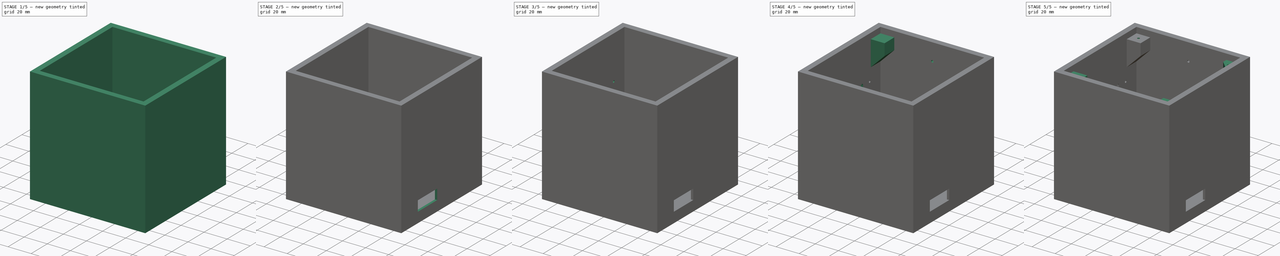
[diagram: build sequence overview — one tinted view per stage of 5, left to right]
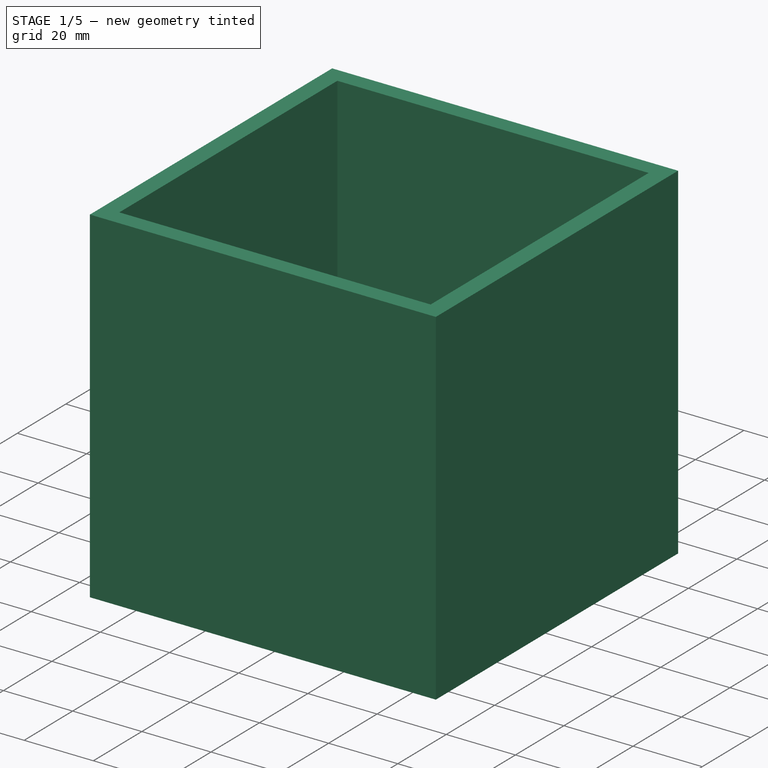
[diagram: stage 1 of 5 — iso view after this stage's code; geometry added in this stage tinted green]
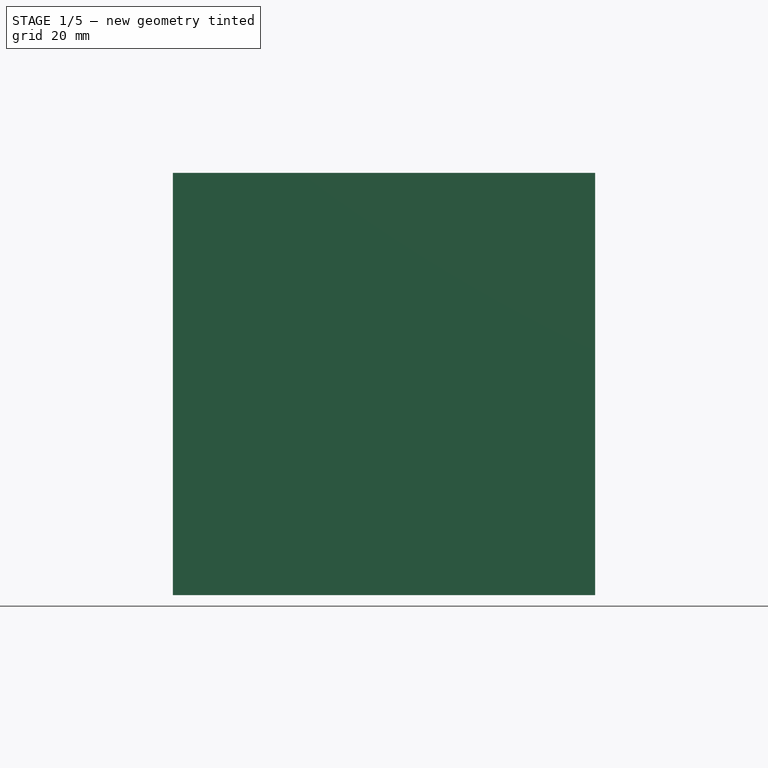
[diagram: stage 1 of 5 — front view after this stage's code; geometry added in this stage tinted green]
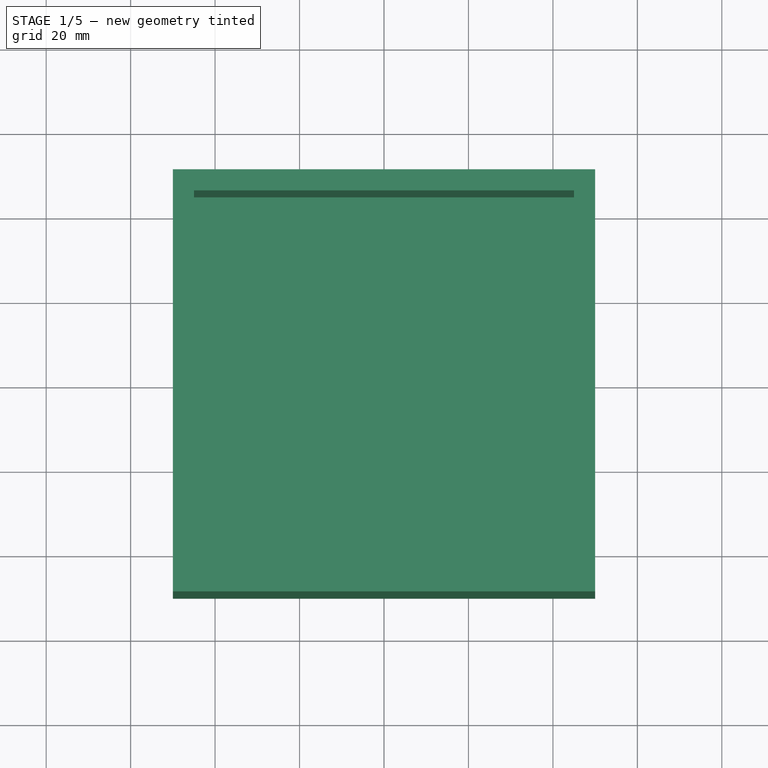
[diagram: stage 1 of 5 — top view after this stage's code; geometry added in this stage tinted green]
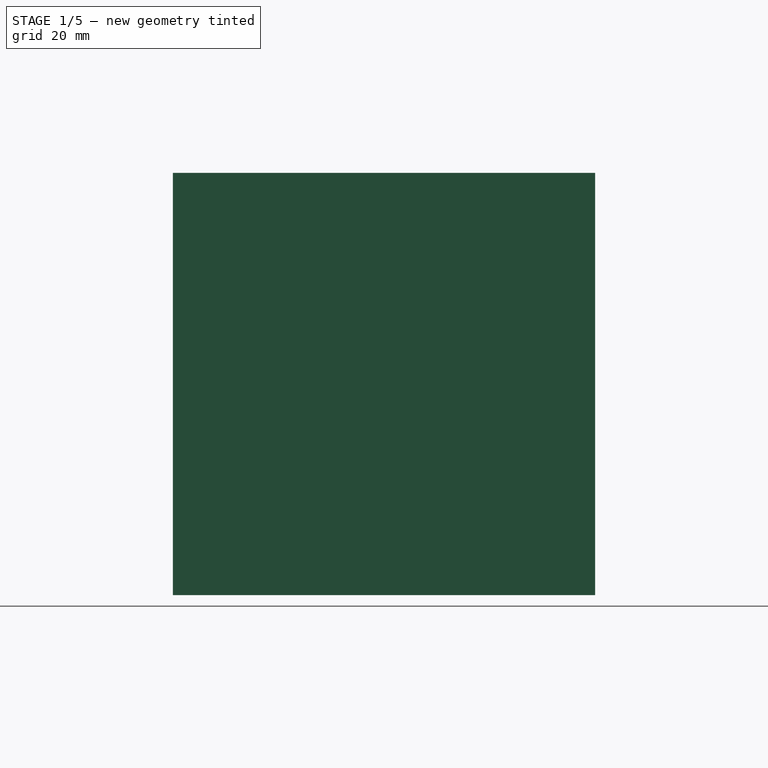
[diagram: stage 1 of 5 — right view after this stage's code; geometry added in this stage tinted green]
FCSTD DOCUMENT  (FreeCAD 0.21R33675 (Git))
Label: boxv1
License: All rights reserved
LicenseURL: http://en.wikipedia.org/wiki/All_rights_reserved
objects: Sketcher::SketchObject×14, PartDesign::Pocket×11, PartDesign::Pad×3, PartDesign::LinearPattern×3, PartDesign::Mirrored×2, PartDesign::MultiTransform×2, PartDesign::Body×1
note: 50 computed .brp shape members not serialized (recipe doc carries the construction recipe); baked Part::Feature solids carry a one-line shape summary decoded from their .brp

FEATURE [Sketcher::SketchObject] Sketch
  FullyConstrained = true
  MapMode = 5
  Support = -> [XY_Plane]
  sketch-geometry (6):
    g0: LineSegment StartX=-50 StartY=50 StartZ=0 EndX=50 EndY=50 EndZ=0
    g1: LineSegment StartX=50 StartY=50 StartZ=0 EndX=50 EndY=-50 EndZ=0
    g2: LineSegment StartX=50 StartY=-50 StartZ=0 EndX=-50 EndY=-50 EndZ=0
    g3: LineSegment StartX=-50 StartY=-50 StartZ=0 EndX=-50 EndY=50 EndZ=0
    g4: LineSegment StartX=-50 StartY=50 StartZ=0 EndX=50 EndY=-50 EndZ=0
    g5: LineSegment StartX=-50 StartY=-50 StartZ=0 EndX=50 EndY=50 EndZ=0
  constraints (16):
    c: Coincident(g0,g1)
    c: Coincident(g1,g2)
    c: Coincident(g2,g3)
    c: Coincident(g3,g0)
    c: Horizontal(g0)
    c: Horizontal(g2)
    c: Vertical(g1)
    c: Vertical(g3)
    c: Distance(g0) = 100
    c: Distance(g3) = 100
    c: Coincident(g4,g0)
    c: Coincident(g4,g1)
    c: Coincident(g5,g2)
    c: Coincident(g5,g0)
    c: PointOnObject(g-1,g4)
    c: PointOnObject(g-1,g5)
FEATURE [PartDesign::Pad] Pad
  Direction = (0,0,1)
  Length = 100
  Length2 = 10
  Profile = -> Sketch
  ReferenceAxis = -> Sketch [N_Axis]
  Type = 0
FEATURE [Sketcher::SketchObject] Sketch001
  FullyConstrained = true
  MapMode = 5
  Placement = pos=(0,0,100) rot=(0,0,1;0rad)
  Support = -> [Pad]
  sketch-geometry (6):
    g0: LineSegment StartX=-45 StartY=45 StartZ=0 EndX=45 EndY=45 EndZ=0
    g1: LineSegment StartX=45 StartY=45 StartZ=0 EndX=45 EndY=-45 EndZ=0
    g2: LineSegment StartX=45 StartY=-45 StartZ=0 EndX=-45 EndY=-45 EndZ=0
    g3: LineSegment StartX=-45 StartY=-45 StartZ=0 EndX=-45 EndY=45 EndZ=0
    g4: LineSegment StartX=-45 StartY=45 StartZ=0 EndX=45 EndY=-45 EndZ=0
    g5: LineSegment StartX=-45 StartY=-45 StartZ=0 EndX=45 EndY=45 EndZ=0
  constraints (16):
    c: Coincident(g0,g1)
    c: Coincident(g1,g2)
    c: Coincident(g2,g3)
    c: Coincident(g3,g0)
    c: Horizontal(g0)
    c: Horizontal(g2)
    c: Vertical(g1)
    c: Vertical(g3)
    c: Distance(g0) = 90
    c: Distance(g1) = 90
    c: Coincident(g4,g0)
    c: Coincident(g4,g1)
    c: Coincident(g5,g2)
    c: Coincident(g5,g0)
    c: PointOnObject(g-1,g5)
    c: PointOnObject(g-1,g4)
FEATURE [PartDesign::Pocket] Pocket
  BaseFeature = -> Pad
  Direction = (0,0,-1)
  Length = 95
  Length2 = 5
  Profile = -> Sketch001
  ReferenceAxis = -> Sketch001 [N_Axis]
  Type = 0
FEATURE [Sketcher::SketchObject] Sketch002
  FullyConstrained = true
  MapMode = 5
  Placement = pos=(0,0,0) rot=(1,0,0;1.5708rad)
  Support = -> [XZ_Plane]
  sketch-geometry (4):
    g0: LineSegment StartX=28 StartY=5 StartZ=0 EndX=48 EndY=5 EndZ=0
    g1: LineSegment StartX=48 StartY=5 StartZ=0 EndX=48 EndY=23 EndZ=0
    g2: LineSegment StartX=48 StartY=23 StartZ=0 EndX=28 EndY=43 EndZ=0
    g3: LineSegment StartX=28 StartY=43 StartZ=0 EndX=28 EndY=5 EndZ=0
  constraints (12):
    c: Horizontal(g0)
    c: Coincident(g0,g1)
    c: Vertical(g1)
    c: Coincident(g1,g2)
    c: Coincident(g2,g3)
    c: Coincident(g3,g0)
    c: Vertical(g3)
    c: Angle(g3,g2) = 0.785398
    c: Distance(g1) = 18
    c: DistanceY(g-1,g0) = 5
    c: DistanceX(g-2,g0) = 48
    c: Distance(g0) = 20
FEATURE [PartDesign::Pocket] Pocket001
  BaseFeature = -> Pocket
  Direction = (0,1,-2e-16)
  Length = 45
  Length2 = 5
  Profile = -> Sketch002
  ReferenceAxis = -> Sketch002 [N_Axis]
  Type = 0
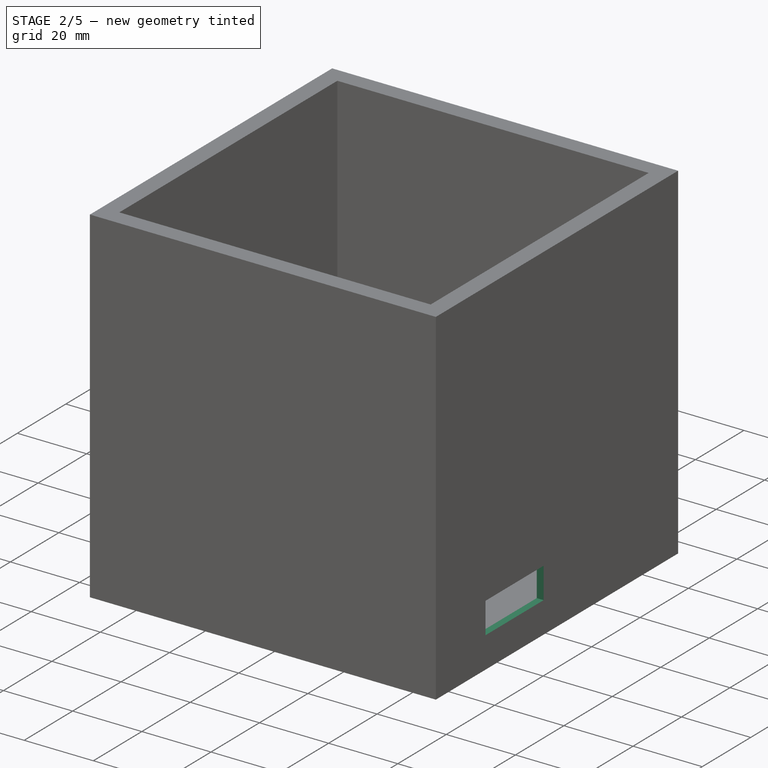
[diagram: stage 2 of 5 — iso view after this stage's code; geometry added in this stage tinted green]
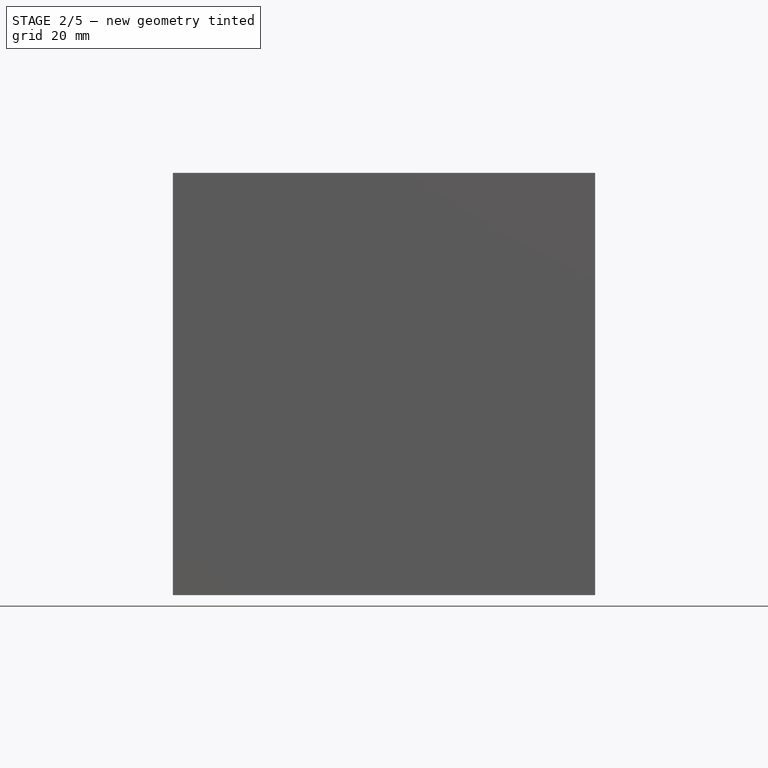
[diagram: stage 2 of 5 — front view after this stage's code; geometry added in this stage tinted green]
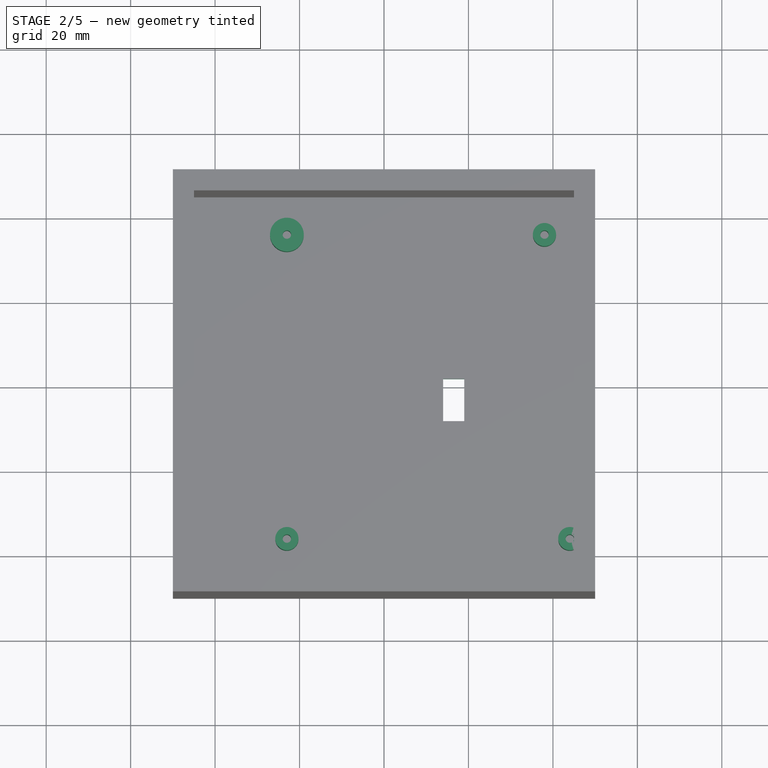
[diagram: stage 2 of 5 — top view after this stage's code; geometry added in this stage tinted green]
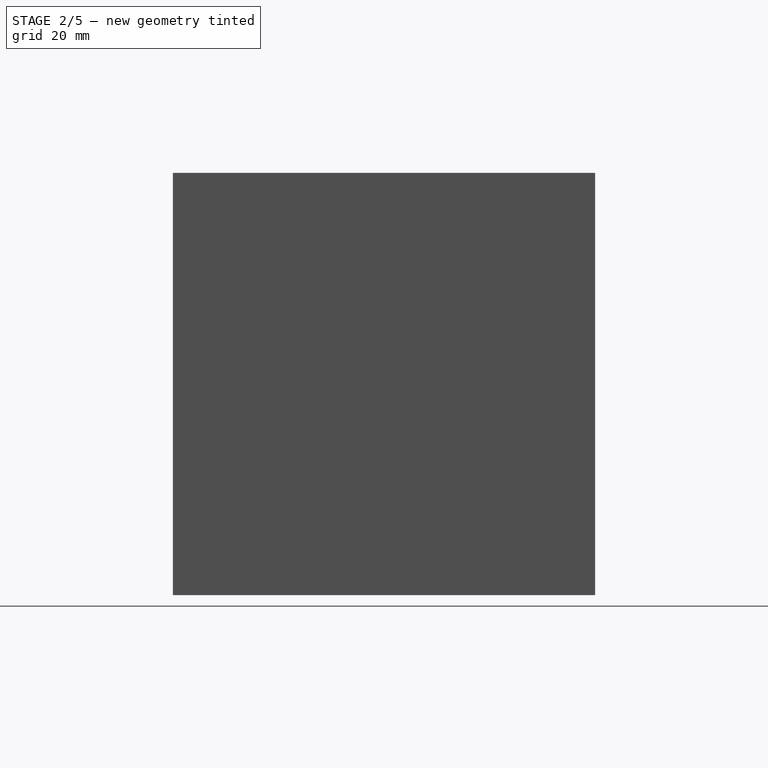
[diagram: stage 2 of 5 — right view after this stage's code; geometry added in this stage tinted green]
FEATURE [PartDesign::Mirrored] Mirrored
  BaseFeature = -> Pocket001
  MirrorPlane = -> XZ_Plane
  Originals = -> [Pocket001]
FEATURE [Sketcher::SketchObject] Sketch003
  FullyConstrained = true
  MapMode = 5
  Placement = pos=(0,0,5) rot=(0,0,1;0rad)
  Support = -> [Mirrored]
  sketch-geometry (8):
    g0: Circle CenterX=-23 CenterY=36 CenterZ=0 NormalX=0 NormalY=0 NormalZ=1 AngleXU=0 Radius=4
    g1: Circle CenterX=38 CenterY=36 CenterZ=0 NormalX=0 NormalY=0 NormalZ=1 AngleXU=0 Radius=2.75
    g2: Circle CenterX=44 CenterY=-36 CenterZ=0 NormalX=0 NormalY=0 NormalZ=1 AngleXU=0 Radius=2.75
    g3: Circle CenterX=-23 CenterY=-36 CenterZ=0 NormalX=0 NormalY=0 NormalZ=1 AngleXU=0 Radius=2.75
    g4: Circle CenterX=-23 CenterY=36 CenterZ=0 NormalX=0 NormalY=0 NormalZ=1 AngleXU=0 Radius=1
    g5: Circle CenterX=38 CenterY=36 CenterZ=0 NormalX=0 NormalY=0 NormalZ=1 AngleXU=0 Radius=1
    g6: Circle CenterX=44 CenterY=-36 CenterZ=0 NormalX=0 NormalY=0 NormalZ=1 AngleXU=0 Radius=1
    g7: Circle CenterX=-23 CenterY=-36 CenterZ=0 NormalX=0 NormalY=0 NormalZ=1 AngleXU=0 Radius=1
  constraints (20):
    c: Diameter(g0) = 8
    c: Diameter(g1) = 5.5
    c: Diameter(g2) = 5.5
    c: Diameter(g3) = 5.5
    c: DistanceY(g3,g0) = 72
    c: DistanceY(g2,g1) = 72
    c: DistanceX(g3,g2) = 67
    c: Horizontal(g3,g2)
    c: Vertical(g3,g0)
    c: DistanceX(g-1,g2) = 44
    c: DistanceY(g-1,g0) = 36
    c: Coincident(g4,g0)
    c: Coincident(g5,g1)
    c: Coincident(g6,g2)
    c: Coincident(g7,g3)
    c: Diameter(g7) = 2
    c: Diameter(g6) = 2
    c: Diameter(g5) = 2
    c: Diameter(g4) = 2
    c: DistanceX(g0,g1) = 61
FEATURE [PartDesign::Pad] Pad001
  BaseFeature = -> Mirrored
  Direction = (0,0,1)
  Length = 10
  Length2 = 10
  Profile = -> Sketch003
  ReferenceAxis = -> Sketch003 [N_Axis]
  Type = 0
FEATURE [Sketcher::SketchObject] Sketch004
  FullyConstrained = true
  MapMode = 5
  Placement = pos=(48,0,0) rot=(0.57735,-0.57735,-0.57735;2.0944rad)
  Support = -> [Pad001]
  sketch-geometry (7):
    g0: LineSegment StartX=5.5 StartY=18 StartZ=0 EndX=29.5 EndY=18 EndZ=0
    g1: LineSegment StartX=29.5 StartY=18 StartZ=0 EndX=29.5 EndY=9 EndZ=0
    g2: LineSegment StartX=29.5 StartY=9 StartZ=0 EndX=5.5 EndY=9 EndZ=0
    g3: LineSegment StartX=5.5 StartY=9 StartZ=0 EndX=5.5 EndY=18 EndZ=0
    g4: LineSegment StartX=5.5 StartY=18 StartZ=0 EndX=29.5 EndY=9 EndZ=0
    g5: LineSegment StartX=5.5 StartY=9 StartZ=0 EndX=29.5 EndY=18 EndZ=0
    g6: GeomPoint X=17.5 Y=13.5 Z=0
  constraints (18):
    c: Coincident(g0,g1)
    c: Coincident(g1,g2)
    c: Coincident(g2,g3)
    c: Coincident(g3,g0)
    c: Horizontal(g0)
    c: Horizontal(g2)
    c: Vertical(g1)
    c: Vertical(g3)
    c: DistanceY(g-1,g1) = 9
    c: Distance(g1) = 9
    c: Distance(g0) = 24
    c: Coincident(g4,g0)
    c: Coincident(g4,g1)
    c: Coincident(g5,g2)
    c: Coincident(g5,g0)
    c: PointOnObject(g6,g4)
    c: PointOnObject(g6,g5)
    c: DistanceX(g-2,g6) = 17.5
FEATURE [PartDesign::Pocket] Pocket002
  BaseFeature = -> Pad001
  Direction = (1,0,0)
  Length = 5
  Length2 = 5
  Profile = -> Sketch004
  ReferenceAxis = -> Sketch004 [N_Axis]
  Type = 0
FEATURE [Sketcher::SketchObject] Sketch005
  FullyConstrained = true
  MapMode = 5
  Placement = pos=(0,0,5) rot=(0,0,1;0rad)
  Support = -> [Pocket002]
  sketch-geometry (7):
    g0: LineSegment StartX=14 StartY=2 StartZ=0 EndX=19 EndY=2 EndZ=0
    g1: LineSegment StartX=19 StartY=2 StartZ=0 EndX=19 EndY=-8 EndZ=0
    g2: LineSegment StartX=19 StartY=-8 StartZ=0 EndX=14 EndY=-8 EndZ=0
    g3: LineSegment StartX=14 StartY=-8 StartZ=0 EndX=14 EndY=2 EndZ=0
    g4: LineSegment StartX=14 StartY=2 StartZ=0 EndX=19 EndY=-8 EndZ=0
    g5: LineSegment StartX=14 StartY=-8 StartZ=0 EndX=19 EndY=2 EndZ=0
    g6: GeomPoint X=16.5 Y=-3 Z=0
  constraints (18):
    c: Coincident(g0,g1)
    c: Coincident(g1,g2)
    c: Coincident(g2,g3)
    c: Coincident(g3,g0)
    c: Horizontal(g0)
    c: Horizontal(g2)
    c: Vertical(g1)
    c: Vertical(g3)
    c: Distance(g1) = 10
    c: Distance(g0) = 5
    c: Coincident(g4,g0)
    c: Coincident(g4,g1)
    c: Coincident(g5,g2)
    c: Coincident(g5,g0)
    c: PointOnObject(g6,g4)
    c: PointOnObject(g6,g5)
    c: DistanceY(g-1,g6) = -3
    c: DistanceX(g-1,g6) = 16.5
FEATURE [PartDesign::Pocket] Pocket003
  BaseFeature = -> Pocket002
  Direction = (0,0,-1)
  Length = 6
  Length2 = 5
  Profile = -> Sketch005
  ReferenceAxis = -> Sketch005 [N_Axis]
  Type = 0
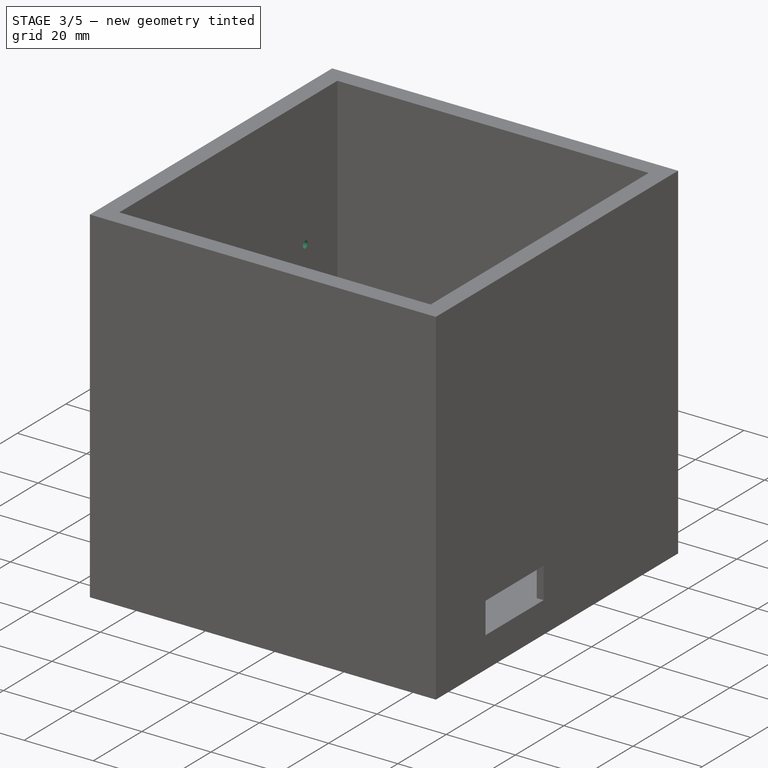
[diagram: stage 3 of 5 — iso view after this stage's code; geometry added in this stage tinted green]
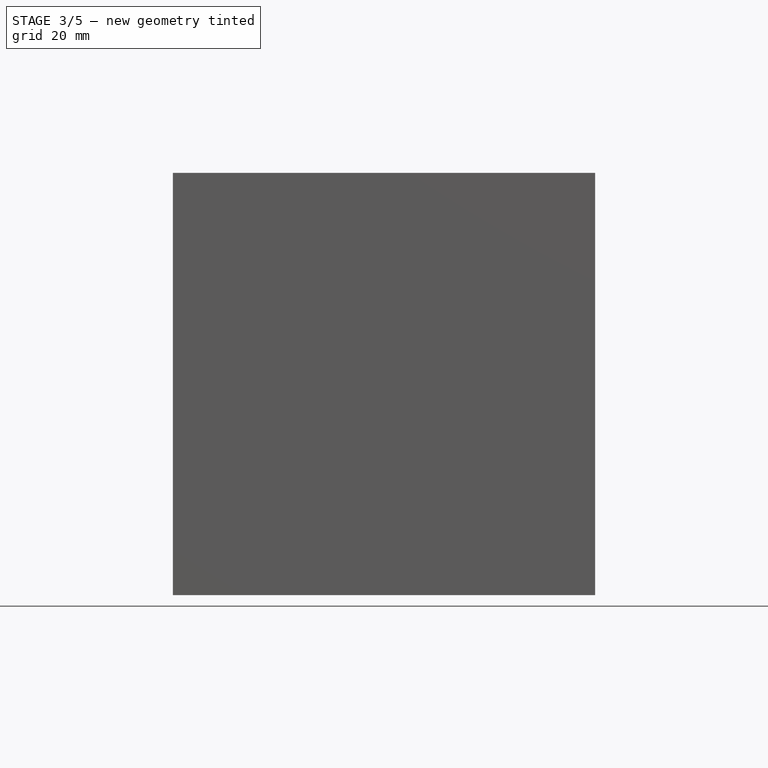
[diagram: stage 3 of 5 — front view after this stage's code; geometry added in this stage tinted green]
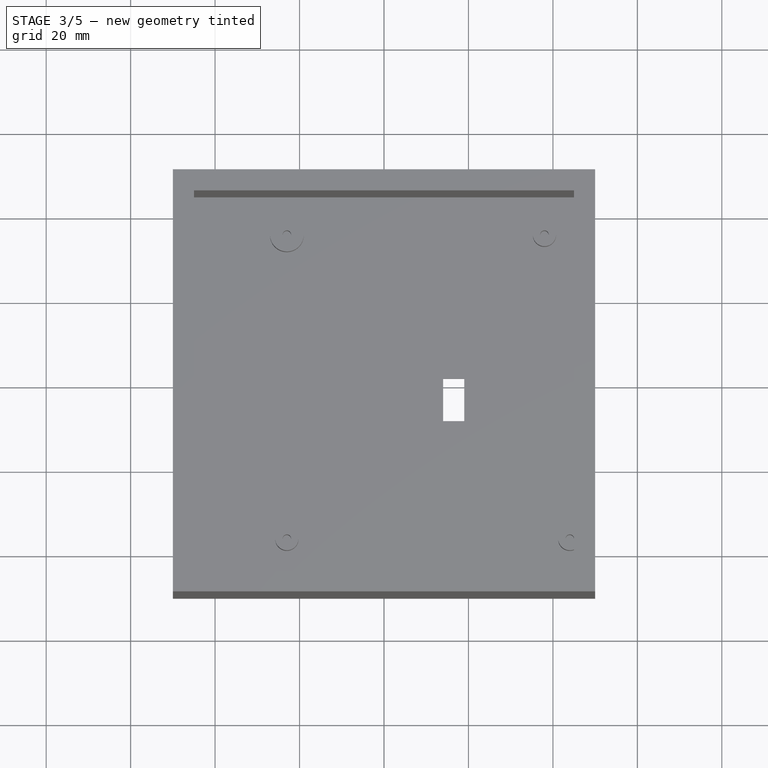
[diagram: stage 3 of 5 — top view after this stage's code; geometry added in this stage tinted green]
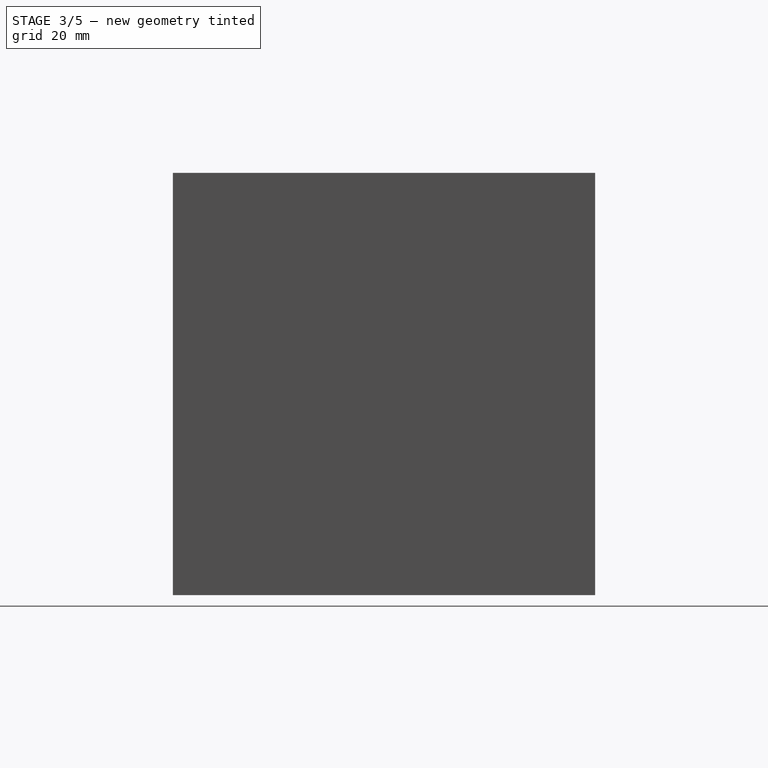
[diagram: stage 3 of 5 — right view after this stage's code; geometry added in this stage tinted green]
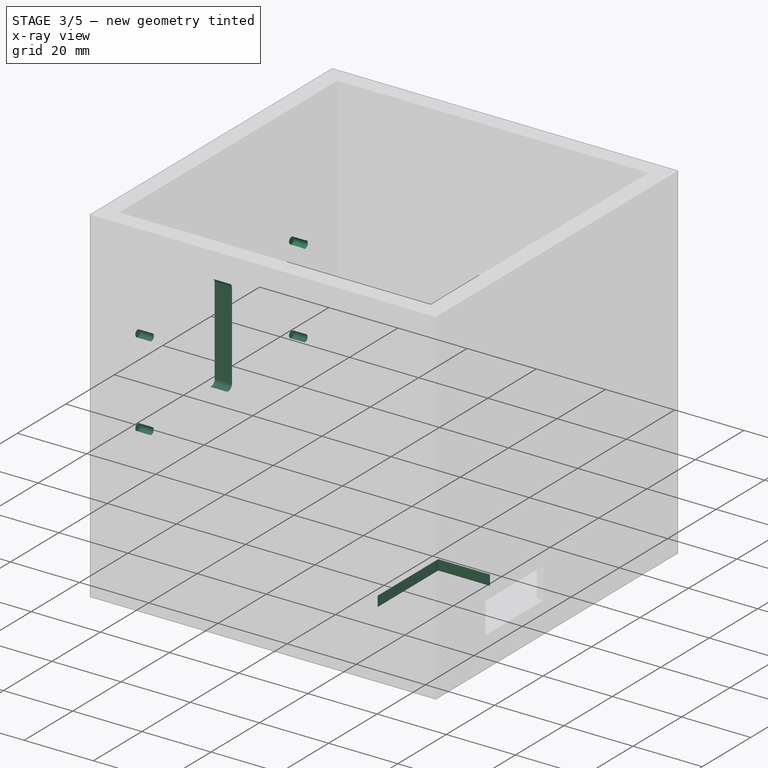
[diagram: stage 3 of 5 — x-ray composite at the iso view; earlier geometry ghosted, this stage's added geometry solid]
FEATURE [Sketcher::SketchObject] Sketch006
  FullyConstrained = true
  MapMode = 5
  Placement = pos=(0,0,0) rot=(1,0,0;3.14159rad)
  Support = -> [Pocket003]
  sketch-geometry (7):
    g0: LineSegment StartX=9 StartY=15.5 StartZ=0 EndX=24 EndY=15.5 EndZ=0
    g1: LineSegment StartX=24 StartY=15.5 StartZ=0 EndX=24 EndY=-9.5 EndZ=0
    g2: LineSegment StartX=24 StartY=-9.5 StartZ=0 EndX=9 EndY=-9.5 EndZ=0
    g3: LineSegment StartX=9 StartY=-9.5 StartZ=0 EndX=9 EndY=15.5 EndZ=0
    g4: LineSegment StartX=9 StartY=15.5 StartZ=0 EndX=24 EndY=-9.5 EndZ=0
    g5: LineSegment StartX=9 StartY=-9.5 StartZ=0 EndX=24 EndY=15.5 EndZ=0
    g6: GeomPoint X=16.5 Y=3 Z=0
  constraints (18):
    c: Coincident(g0,g1)
    c: Coincident(g1,g2)
    c: Coincident(g2,g3)
    c: Coincident(g3,g0)
    c: Horizontal(g0)
    c: Horizontal(g2)
    c: Vertical(g1)
    c: Vertical(g3)
    c: Distance(g0) = 15
    c: Distance(g1) = 25
    c: Coincident(g4,g0)
    c: Coincident(g4,g1)
    c: Coincident(g5,g2)
    c: Coincident(g5,g0)
    c: PointOnObject(g6,g4)
    c: PointOnObject(g6,g5)
    c: DistanceY(g-1,g6) = 3
    c: DistanceX(g-2,g6) = 16.5
FEATURE [PartDesign::Pocket] Pocket004
  BaseFeature = -> Pocket003
  Direction = (0,0,1)
  Length = 3
  Length2 = 5
  Profile = -> Sketch006
  ReferenceAxis = -> Sketch006 [N_Axis]
  Type = 0
FEATURE [Sketcher::SketchObject] Sketch007
  FullyConstrained = true
  MapMode = 5
  Placement = pos=(-45,0,0) rot=(0.57735,0.57735,0.57735;2.0944rad)
  Support = -> [Pocket004]
  sketch-geometry (7):
    g0: Circle CenterX=-31.75 CenterY=62.25 CenterZ=0 NormalX=0 NormalY=0 NormalZ=1 AngleXU=0 Radius=1
    g1: Circle CenterX=31.75 CenterY=62.25 CenterZ=0 NormalX=0 NormalY=0 NormalZ=1 AngleXU=0 Radius=1
    g2: Circle CenterX=-31.75 CenterY=37.75 CenterZ=0 NormalX=0 NormalY=0 NormalZ=1 AngleXU=0 Radius=1
    g3: Circle CenterX=31.75 CenterY=37.75 CenterZ=0 NormalX=0 NormalY=0 NormalZ=1 AngleXU=0 Radius=1
    g4: LineSegment StartX=-31.75 StartY=62.25 StartZ=0 EndX=31.75 EndY=37.75 EndZ=0
    g5: LineSegment StartX=-31.75 StartY=37.75 StartZ=0 EndX=31.75 EndY=62.25 EndZ=0
    g6: GeomPoint X=0 Y=50 Z=0
  constraints (18):
    c: Diameter(g3) = 2
    c: Diameter(g1) = 2
    c: Diameter(g0) = 2
    c: Diameter(g2) = 2
    c: DistanceX(g0,g1) = 63.5
    c: Vertical(g1,g3)
    c: Vertical(g0,g2)
    c: Horizontal(g0,g1)
    c: Horizontal(g2,g3)
    c: DistanceY(g3,g1) = 24.5
    c: Coincident(g4,g0)
    c: Coincident(g4,g3)
    c: Coincident(g5,g2)
    c: Coincident(g5,g1)
    c: PointOnObject(g6,g4)
    c: PointOnObject(g6,g5)
    c: PointOnObject(g6,g-2)
    c: Distance(g-1,g6) = 50
FEATURE [PartDesign::Pocket] Pocket005
  BaseFeature = -> Pocket004
  Direction = (-1,0,0)
  Length = 4
  Length2 = 5
  Profile = -> Sketch007
  ReferenceAxis = -> Sketch007 [N_Axis]
  Type = 0
FEATURE [Sketcher::SketchObject] Sketch008
  FullyConstrained = true
  MapMode = 5
  Placement = pos=(-45,0,0) rot=(0.57735,0.57735,0.57735;2.0944rad)
  Support = -> [Pocket005]
  sketch-geometry (4):
    g0: ArcOfCircle CenterX=0 CenterY=62.5 CenterZ=0 NormalX=0 NormalY=0 NormalZ=1 AngleXU=0 Radius=1.5 StartAngle=-1.8e-15 EndAngle=3.14159
    g1: ArcOfCircle CenterX=-1e-16 CenterY=37.5 CenterZ=0 NormalX=0 NormalY=0 NormalZ=1 AngleXU=0 Radius=1.5 StartAngle=3.14159 EndAngle=6.28319
    g2: LineSegment StartX=-1.5 StartY=62.5 StartZ=0 EndX=-1.5 EndY=37.5 EndZ=0
    g3: LineSegment StartX=1.5 StartY=37.5 StartZ=0 EndX=1.5 EndY=62.5 EndZ=0
  constraints (10):
    c: Tangent(g0,g2) = -1.5708
    c: Tangent(g2,g1) = -1.5708
    c: Tangent(g1,g3) = -1.5708
    c: Tangent(g3,g0) = -1.5708
    c: Equal(g0,g1)
    c: Vertical(g2)
    c: Diameter(g0) = 3
    c: Distance(g0,g1) = 25
    c: PointOnObject(g0,g-2)
    c: Distance(g-1,g1) = 37.5
FEATURE [PartDesign::Pocket] Pocket006
  BaseFeature = -> Pocket005
  Direction = (-1,0,0)
  Length = 6
  Length2 = 5
  Profile = -> Sketch008
  ReferenceAxis = -> Sketch008 [N_Axis]
  Type = 0
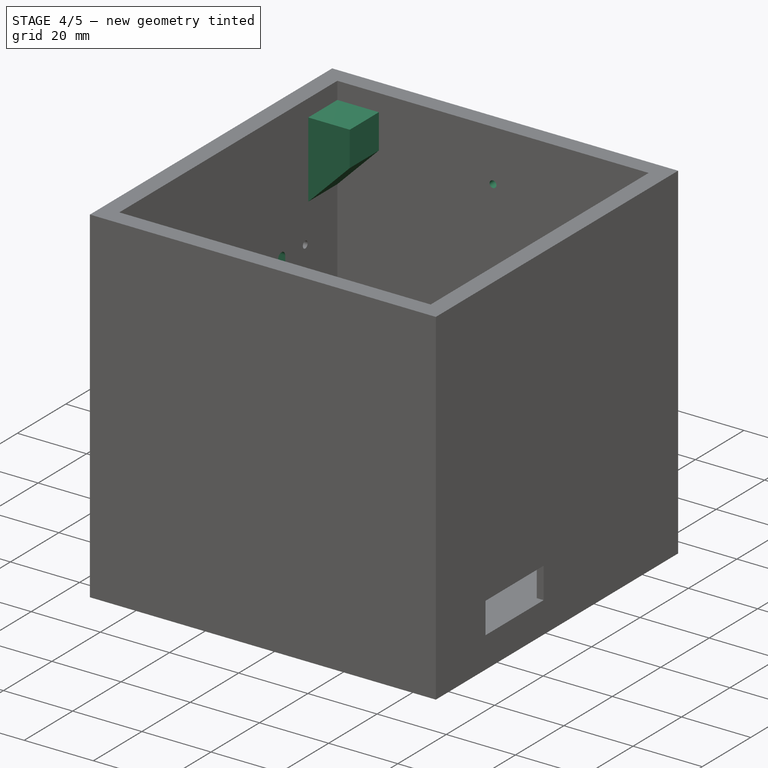
[diagram: stage 4 of 5 — iso view after this stage's code; geometry added in this stage tinted green]
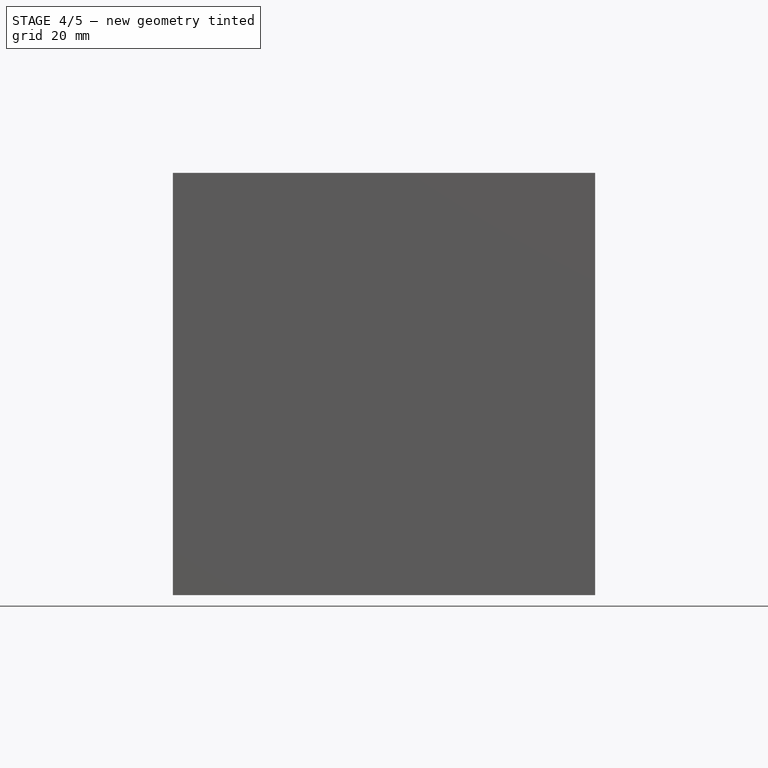
[diagram: stage 4 of 5 — front view after this stage's code; geometry added in this stage tinted green]
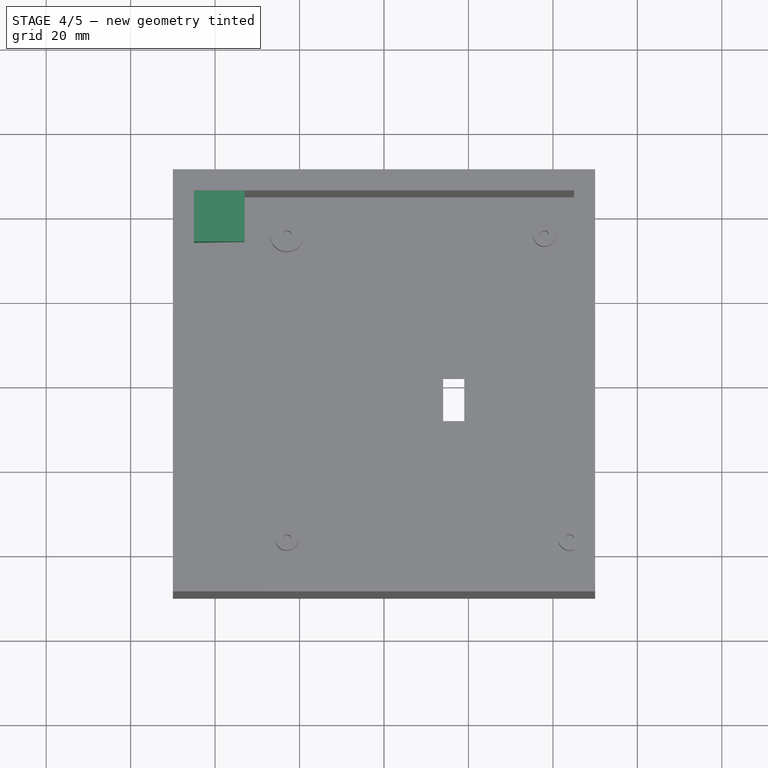
[diagram: stage 4 of 5 — top view after this stage's code; geometry added in this stage tinted green]
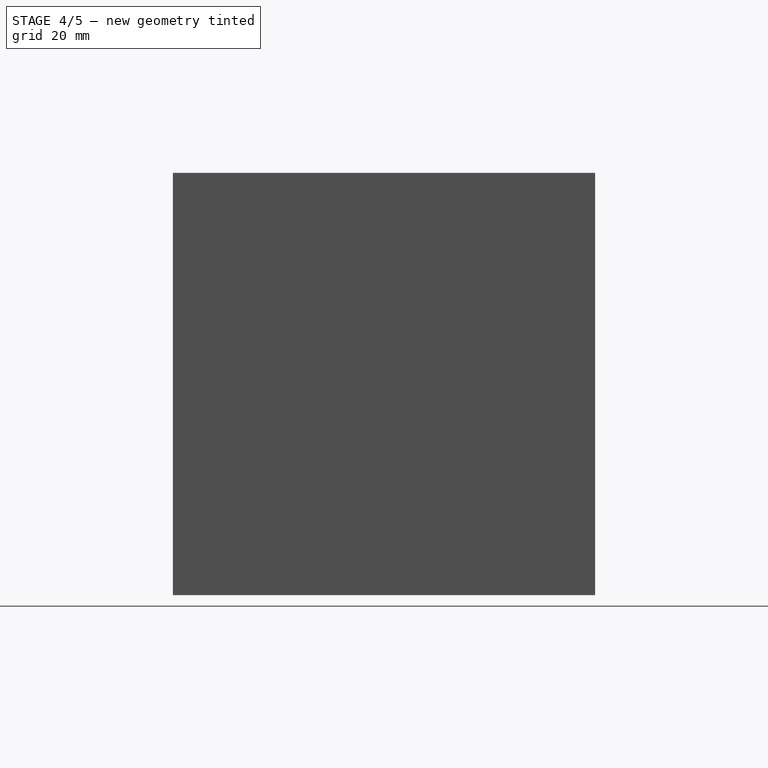
[diagram: stage 4 of 5 — right view after this stage's code; geometry added in this stage tinted green]
FEATURE [PartDesign::LinearPattern] LinearPattern
  Direction = -> Sketch008 [H_Axis]
  Length = 22
  Occurrences = 4
FEATURE [PartDesign::LinearPattern] LinearPattern001
  Direction = -> Sketch008 [H_Axis]
  Length = 22
  Occurrences = 2
  Reversed = true
FEATURE [PartDesign::MultiTransform] MultiTransform
  BaseFeature = -> Pocket006
  Originals = -> [Pocket006]
  Transformations = -> [LinearPattern,LinearPattern001]
FEATURE [Sketcher::SketchObject] Sketch009
  FullyConstrained = true
  MapMode = 5
  Placement = pos=(45,0,0) rot=(0.57735,-0.57735,-0.57735;2.0944rad)
  Support = -> [MultiTransform]
  sketch-geometry (2):
    g0: Circle CenterX=0 CenterY=80 CenterZ=0 NormalX=0 NormalY=0 NormalZ=1 AngleXU=0 Radius=1
    g1: Circle CenterX=0 CenterY=35 CenterZ=0 NormalX=0 NormalY=0 NormalZ=1 AngleXU=0 Radius=1
  constraints (6):
    c: Diameter(g1) = 2
    c: Diameter(g0) = 2
    c: PointOnObject(g1,g-2)
    c: PointOnObject(g0,g-2)
    c: Distance(g0,g1) = 45
    c: Distance(g-1,g1) = 35
FEATURE [PartDesign::Pocket] Pocket007
  BaseFeature = -> MultiTransform
  Direction = (1,0,0)
  Length = 4
  Length2 = 5
  Profile = -> Sketch009
  ReferenceAxis = -> Sketch009 [N_Axis]
  Type = 0
FEATURE [Sketcher::SketchObject] Sketch010
  FullyConstrained = true
  MapMode = 5
  Placement = pos=(0,45,0) rot=(1,0,0;1.5708rad)
  Support = -> [Pocket007]
  sketch-geometry (2):
    g0: Circle CenterX=0 CenterY=85 CenterZ=0 NormalX=0 NormalY=0 NormalZ=1 AngleXU=0 Radius=1
    g1: Circle CenterX=0 CenterY=60 CenterZ=0 NormalX=0 NormalY=0 NormalZ=1 AngleXU=0 Radius=1
  constraints (6):
    c: Diameter(g0) = 2
    c: Diameter(g1) = 2
    c: PointOnObject(g1,g-2)
    c: PointOnObject(g0,g-2)
    c: Distance(g0,g1) = 25
    c: Distance(g-1,g1) = 60
FEATURE [PartDesign::Pocket] Pocket008
  BaseFeature = -> Pocket007
  Direction = (0,1,-2e-16)
  Length = 4
  Length2 = 5
  Profile = -> Sketch010
  ReferenceAxis = -> Sketch010 [N_Axis]
  Type = 0
FEATURE [Sketcher::SketchObject] Sketch011
  FullyConstrained = true
  MapMode = 5
  Placement = pos=(0,45,0) rot=(1,0,0;1.5708rad)
  Support = -> [Pocket008]
  sketch-geometry (4):
    g0: LineSegment StartX=-45 StartY=95 StartZ=0 EndX=-33 EndY=95 EndZ=0
    g1: LineSegment StartX=-33 StartY=95 StartZ=0 EndX=-33 EndY=85 EndZ=0
    g2: LineSegment StartX=-33 StartY=85 StartZ=0 EndX=-45 EndY=73 EndZ=0
    g3: LineSegment StartX=-45 StartY=73 StartZ=0 EndX=-45 EndY=95 EndZ=0
  constraints (12):
    c: Horizontal(g0)
    c: Coincident(g0,g1)
    c: Vertical(g1)
    c: Coincident(g1,g2)
    c: Coincident(g2,g3)
    c: Coincident(g3,g0)
    c: Vertical(g3)
    c: Angle(g2,g3) = 0.785398
    c: Distance(g0) = 12
    c: Distance(g1) = 10
    c: DistanceX(g-2,g2) = -45
    c: DistanceY(g-1,g0) = 95
FEATURE [PartDesign::Pad] Pad002
  BaseFeature = -> Pocket008
  Direction = (0,-1,2e-16)
  Length = 12
  Length2 = 10
  Profile = -> Sketch011
  ReferenceAxis = -> Sketch011 [N_Axis]
  Type = 0
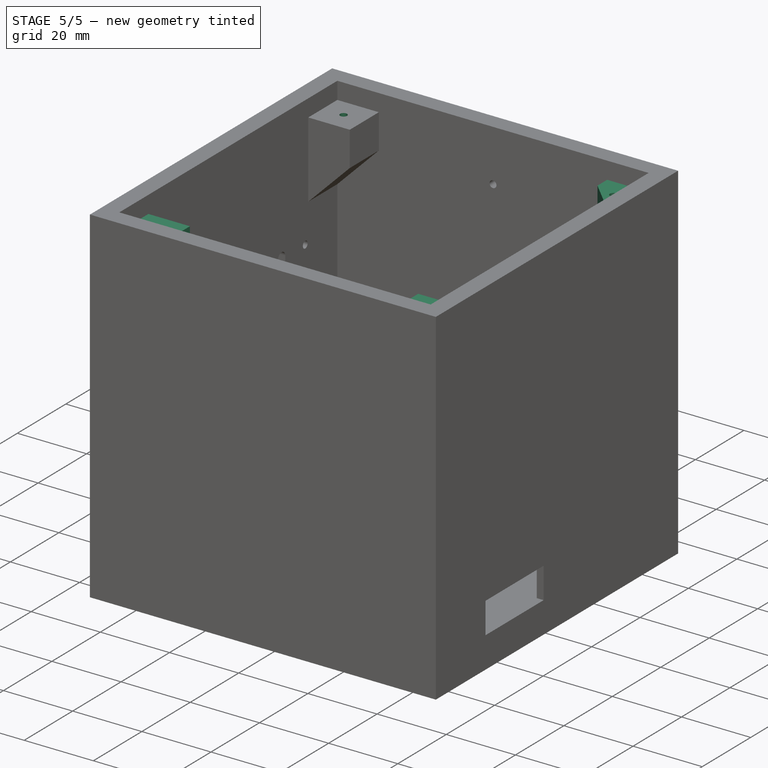
[diagram: stage 5 of 5 — iso view after this stage's code; geometry added in this stage tinted green]
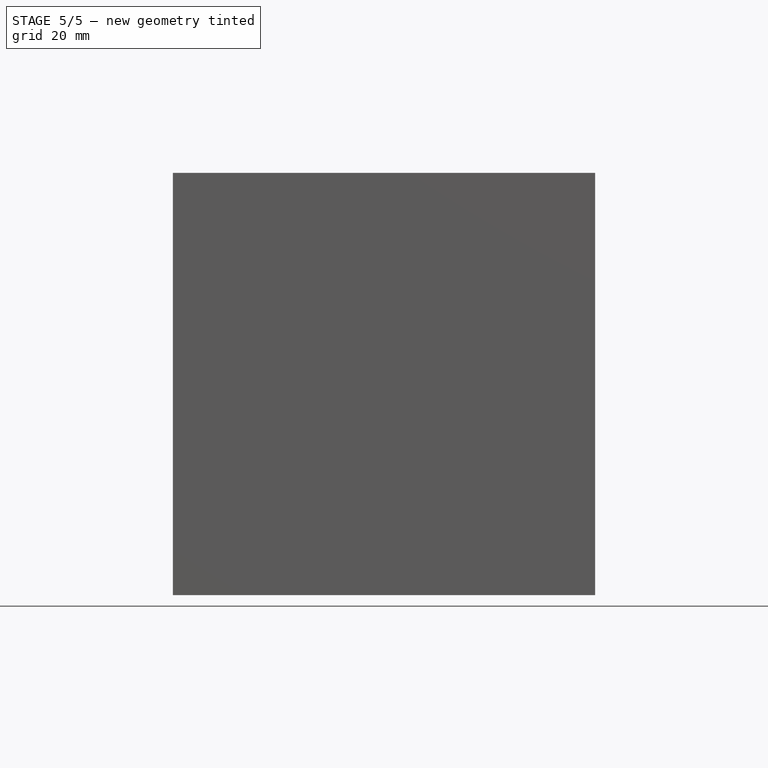
[diagram: stage 5 of 5 — front view after this stage's code; geometry added in this stage tinted green]
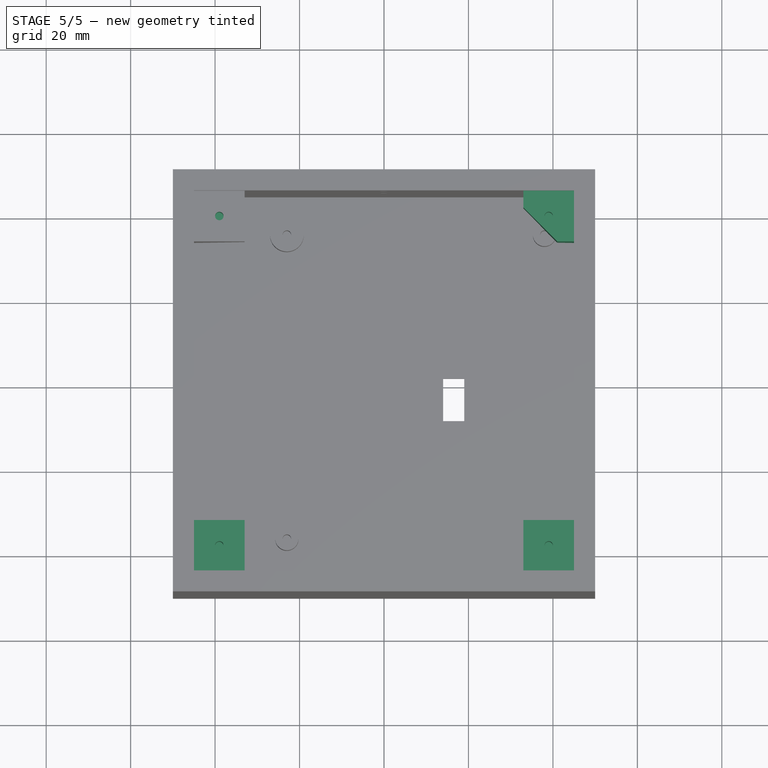
[diagram: stage 5 of 5 — top view after this stage's code; geometry added in this stage tinted green]
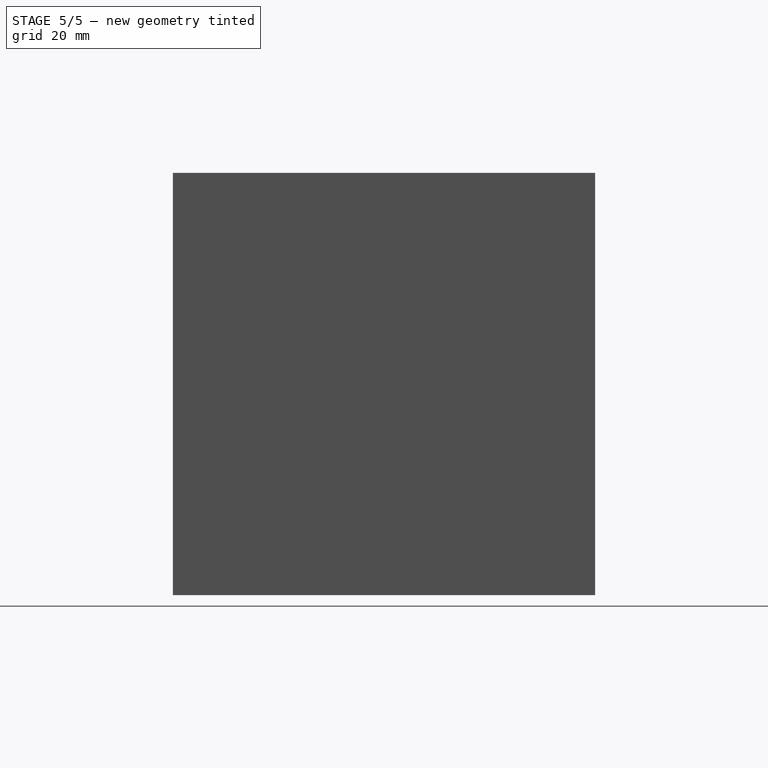
[diagram: stage 5 of 5 — right view after this stage's code; geometry added in this stage tinted green]
FEATURE [PartDesign::Mirrored] Mirrored001
  MirrorPlane = -> Sketch011 [V_Axis]
FEATURE [PartDesign::LinearPattern] LinearPattern002
  Direction = -> Sketch011 [N_Axis]
  Length = 78
  Occurrences = 2
FEATURE [PartDesign::MultiTransform] MultiTransform001
  BaseFeature = -> Pad002
  Originals = -> [Pad002]
  Transformations = -> [Mirrored001,LinearPattern002]
FEATURE [Sketcher::SketchObject] Sketch012
  FullyConstrained = true
  MapMode = 5
  Placement = pos=(0,2.09e-14,95) rot=(0,0,1;0rad)
  Support = -> [MultiTransform001]
  sketch-geometry (7):
    g0: Circle CenterX=-39 CenterY=39 CenterZ=0 NormalX=0 NormalY=0 NormalZ=1 AngleXU=0 Radius=1
    g1: Circle CenterX=39 CenterY=39 CenterZ=0 NormalX=0 NormalY=0 NormalZ=1 AngleXU=0 Radius=1
    g2: Circle CenterX=39 CenterY=-39 CenterZ=0 NormalX=0 NormalY=0 NormalZ=1 AngleXU=0 Radius=1
    g3: Circle CenterX=-39 CenterY=-39 CenterZ=0 NormalX=0 NormalY=0 NormalZ=1 AngleXU=0 Radius=1
    g4: LineSegment StartX=-39 StartY=39 StartZ=0 EndX=39 EndY=-39 EndZ=0
    g5: LineSegment StartX=39 StartY=39 StartZ=0 EndX=-39 EndY=-39 EndZ=0
    g6: GeomPoint X=0 Y=0 Z=0
  constraints (17):
    c: Diameter(g0) = 2
    c: Diameter(g1) = 2
    c: Diameter(g2) = 2
    c: Diameter(g3) = 2
    c: Horizontal(g3,g2)
    c: Horizontal(g0,g1)
    c: Vertical(g1,g2)
    c: Vertical(g3,g0)
    c: Coincident(g4,g0)
    c: Coincident(g4,g2)
    c: Coincident(g5,g1)
    c: Coincident(g5,g3)
    c: PointOnObject(g6,g4)
    c: PointOnObject(g6,g5)
    c: Coincident(g6,g-1)
    c: Distance(g3,g2) = 78
    c: Distance(g2,g1) = 78
FEATURE [PartDesign::Pocket] Pocket009
  BaseFeature = -> MultiTransform001
  Direction = (0,-2e-16,-1)
  Length = 10
  Length2 = 5
  Profile = -> Sketch012
  ReferenceAxis = -> Sketch012 [N_Axis]
  Type = 0
FEATURE [Sketcher::SketchObject] Sketch013
  FullyConstrained = true
  MapMode = 5
  Placement = pos=(0,2.09e-14,95) rot=(0,0,1;0rad)
  Support = -> [Pocket009]
  sketch-geometry (3):
    g0: LineSegment StartX=32 StartY=42 StartZ=0 EndX=42 EndY=32 EndZ=0
    g1: LineSegment StartX=42 StartY=32 StartZ=0 EndX=32 EndY=32 EndZ=0
    g2: LineSegment StartX=32 StartY=32 StartZ=0 EndX=32 EndY=42 EndZ=0
  constraints (9):
    c: Coincident(g0,g1)
    c: Coincident(g1,g2)
    c: Coincident(g2,g0)
    c: Horizontal(g1)
    c: Vertical(g2)
    c: Angle(g0,g1) = 0.785398
    c: DistanceX(g1,g1) = 10
    c: DistanceX(g-2,g1) = 32
    c: DistanceY(g-1,g1) = 32
FEATURE [PartDesign::Pocket] Pocket010
  BaseFeature = -> Pocket009
  Direction = (0,-2e-16,-1)
  Length = 20
  Length2 = 5
  Profile = -> Sketch013
  ReferenceAxis = -> Sketch013 [N_Axis]
  Type = 0
FEATURE [PartDesign::Body] Body
  Group = -> [Sketch,Pad,Sketch001,Pocket,Sketch002,Pocket001,Mirrored,Sketch003,Pad001,Sketch004,Pocket002,Sketch005,Pocket003,Sketch006,Pocket004,Sketch007,Pocket005,Sketch008,Pocket006,MultiTransform,LinearPattern,LinearPattern001,Sketch009,Pocket007,Sketch010,Pocket008,Sketch011,Pad002,MultiTransform001,Mirrored001,LinearPattern002,Sketch012,Pocket009,Sketch013,Pocket010]
  Origin = -> Origin
  Tip = -> Pocket010
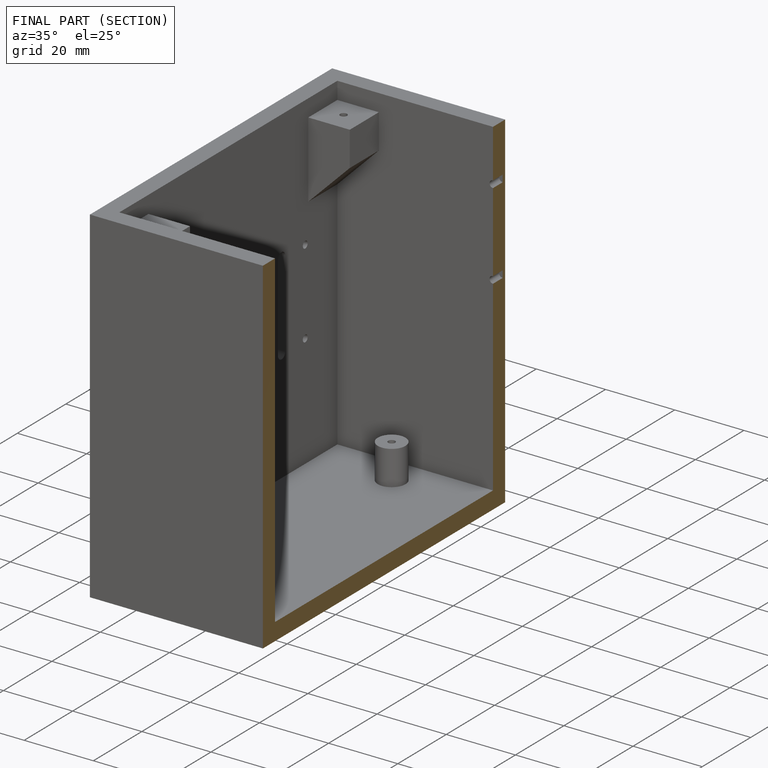
[diagram: finished part — half-section view (interior)]
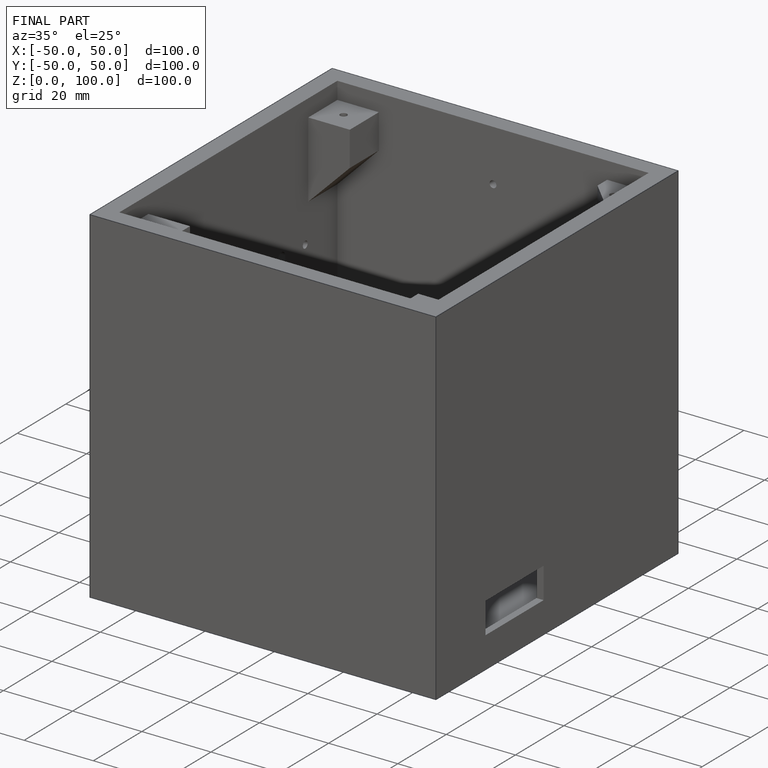
[diagram: finished part — iso view with bounding-box wireframe]
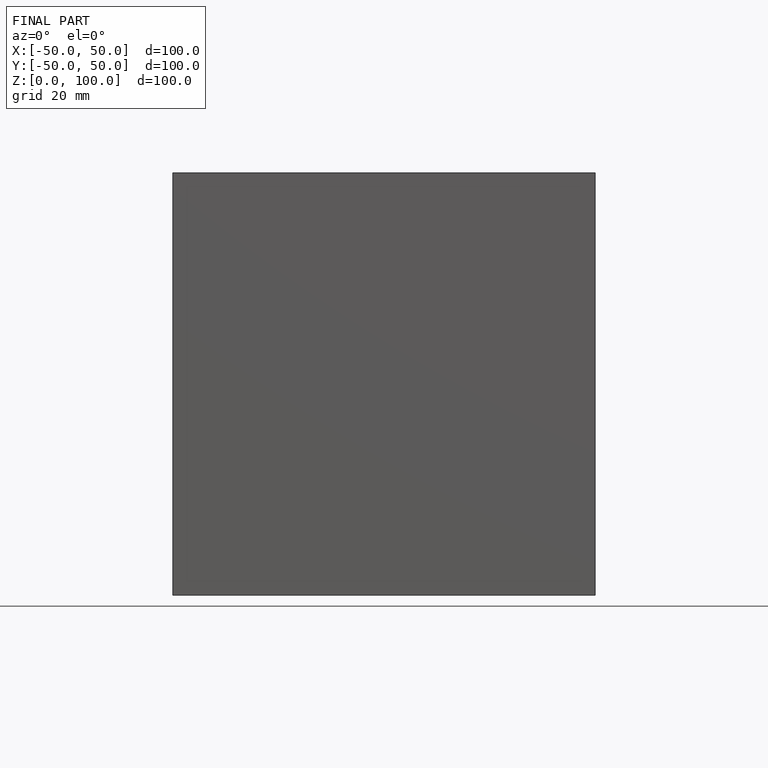
[diagram: finished part — front view with bounding-box wireframe]
